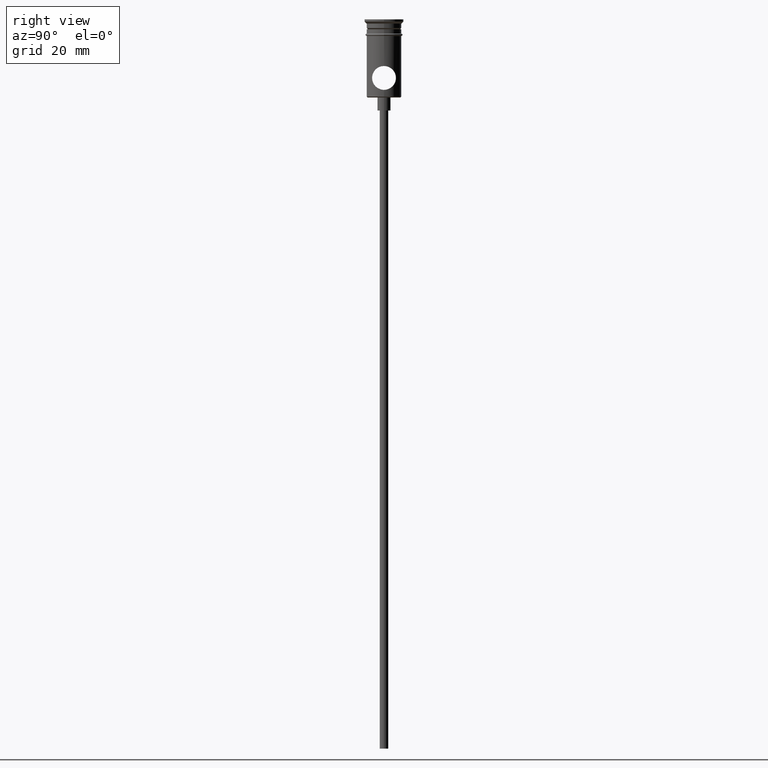
[diagram: clean part render]
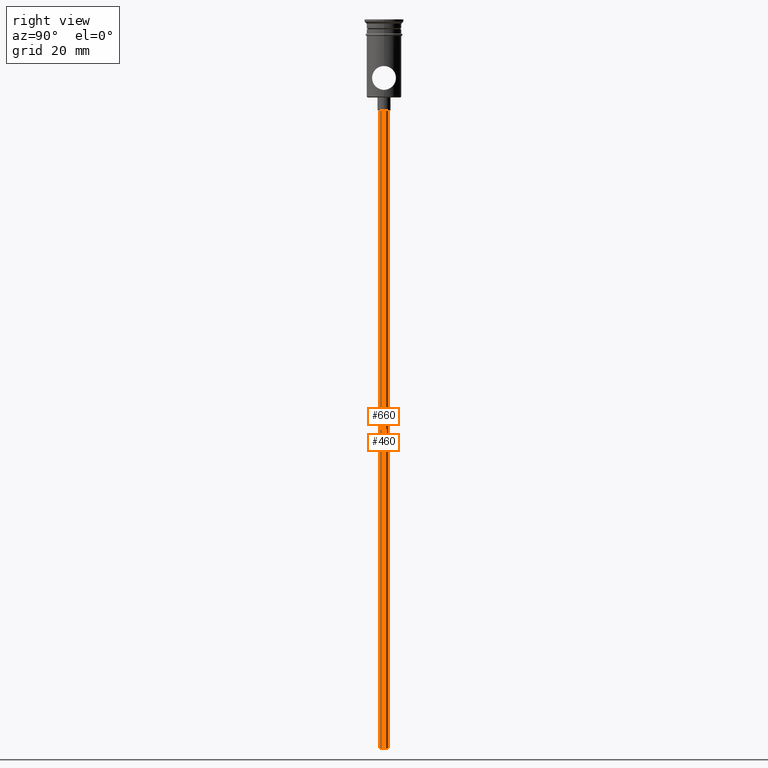
[diagram: same view with one multi-face feature highlighted, each face labeled with its STEP entity id]
A machine part, right view. The highlighted faces form ONE feature: a constant-radius fillet chain: 2 tangent blend faces with common blend radius 1 mm. The faces share edges in the B-rep.
Their STEP definitions:
[1] entity #460 (Cylinder):
#9 = CARTESIAN_POINT ( 'NONE',  ( 0.9999999999999997780, 0.000000000000000000, -20.99999999999999645 ) ) ;
#43 = AXIS2_PLACEMENT_3D ( 'NONE', #904, #805, #1233 ) ;
#65 = DIRECTION ( 'NONE',  ( -0.000000000000000000, -0.000000000000000000, 1.000000000000000000 ) ) ;
#76 = ORIENTED_EDGE ( 'NONE', *, *, #671, .T. ) ;
#85 = CARTESIAN_POINT ( 'NONE',  ( 0.9999999999999997780, 0.000000000000000000, -167.9999999999999716 ) ) ;
#106 = DIRECTION ( 'NONE',  ( -0.000000000000000000, -0.000000000000000000, 1.000000000000000000 ) ) ;
#131 = AXIS2_PLACEMENT_3D ( 'NONE', #150, #1329, #1110 ) ;
#150 = CARTESIAN_POINT ( 'NONE',  ( 0.000000000000000000, 0.000000000000000000, -20.99999999999999645 ) ) ;
#157 = CIRCLE ( 'NONE', #131, 0.9999999999999997780 ) ;
#183 = VECTOR ( 'NONE', #669, 1000.000000000000000 ) ;
#202 = CARTESIAN_POINT ( 'NONE',  ( 0.9999999999999997780, 0.000000000000000000, -167.9999999999999716 ) ) ;
#288 = DIRECTION ( 'NONE',  ( 1.000000000000000000, 0.000000000000000000, 0.000000000000000000 ) ) ;
#323 = AXIS2_PLACEMENT_3D ( 'NONE', #630, #65, #288 ) ;
#447 = CARTESIAN_POINT ( 'NONE',  ( -0.9999999999999997780, 1.224646799147352961E-16, -167.9999999999999716 ) ) ;
#460 = ADVANCED_FACE ( 'NONE', ( #606 ), #1040, .T. ) ;
#498 = ORIENTED_EDGE ( 'NONE', *, *, #616, .T. ) ;
#524 = VERTEX_POINT ( 'NONE', #85 ) ;
#556 = EDGE_CURVE ( 'NONE', #524, #732, #1083, .T. ) ;
#606 = FACE_OUTER_BOUND ( 'NONE', #1119, .T. ) ;
#616 = EDGE_CURVE ( 'NONE', #923, #1224, #772, .T. ) ;
#630 = CARTESIAN_POINT ( 'NONE',  ( 0.000000000000000000, 0.000000000000000000, -167.9999999999999716 ) ) ;
#669 = DIRECTION ( 'NONE',  ( -0.000000000000000000, -0.000000000000000000, 1.000000000000000000 ) ) ;
#671 = EDGE_CURVE ( 'NONE', #1224, #732, #157, .T. ) ;
#732 = VERTEX_POINT ( 'NONE', #9 ) ;
#760 = EDGE_CURVE ( 'NONE', #923, #524, #798, .T. ) ;
#772 = LINE ( 'NONE', #447, #183 ) ;
#798 = CIRCLE ( 'NONE', #43, 0.9999999999999997780 ) ;
#805 = DIRECTION ( 'NONE',  ( 0.000000000000000000, 0.000000000000000000, -1.000000000000000000 ) ) ;
#845 = CARTESIAN_POINT ( 'NONE',  ( -0.9999999999999997780, 1.224646799147352961E-16, -167.9999999999999716 ) ) ;
#904 = CARTESIAN_POINT ( 'NONE',  ( 0.000000000000000000, 0.000000000000000000, -167.9999999999999716 ) ) ;
#923 = VERTEX_POINT ( 'NONE', #845 ) ;
#959 = CARTESIAN_POINT ( 'NONE',  ( -0.9999999999999997780, 1.224646799147352961E-16, -20.99999999999999645 ) ) ;
#1040 = CYLINDRICAL_SURFACE ( 'NONE', #323, 0.9999999999999997780 ) ;
#1068 = VECTOR ( 'NONE', #106, 1000.000000000000000 ) ;
#1083 = LINE ( 'NONE', #202, #1068 ) ;
#1103 = ORIENTED_EDGE ( 'NONE', *, *, #760, .F. ) ;
#1110 = DIRECTION ( 'NONE',  ( -1.000000000000000000, 0.000000000000000000, 0.000000000000000000 ) ) ;
#1119 = EDGE_LOOP ( 'NONE', ( #1103, #498, #76, #1263 ) ) ;
#1224 = VERTEX_POINT ( 'NONE', #959 ) ;
#1233 = DIRECTION ( 'NONE',  ( -1.000000000000000000, 0.000000000000000000, 0.000000000000000000 ) ) ;
#1263 = ORIENTED_EDGE ( 'NONE', *, *, #556, .F. ) ;
#1329 = DIRECTION ( 'NONE',  ( 0.000000000000000000, 0.000000000000000000, -1.000000000000000000 ) ) ;
[2] entity #660 (Cylinder):
#9 = CARTESIAN_POINT ( 'NONE',  ( 0.9999999999999997780, 0.000000000000000000, -20.99999999999999645 ) ) ;
#10 = ORIENTED_EDGE ( 'NONE', *, *, #1153, .F. ) ;
#27 = FACE_OUTER_BOUND ( 'NONE', #1051, .T. ) ;
#46 = CIRCLE ( 'NONE', #843, 0.9999999999999997780 ) ;
#85 = CARTESIAN_POINT ( 'NONE',  ( 0.9999999999999997780, 0.000000000000000000, -167.9999999999999716 ) ) ;
#106 = DIRECTION ( 'NONE',  ( -0.000000000000000000, -0.000000000000000000, 1.000000000000000000 ) ) ;
#126 = CARTESIAN_POINT ( 'NONE',  ( 0.000000000000000000, 0.000000000000000000, -167.9999999999999716 ) ) ;
#167 = ORIENTED_EDGE ( 'NONE', *, *, #743, .T. ) ;
#183 = VECTOR ( 'NONE', #669, 1000.000000000000000 ) ;
#190 = ORIENTED_EDGE ( 'NONE', *, *, #616, .F. ) ;
#202 = CARTESIAN_POINT ( 'NONE',  ( 0.9999999999999997780, 0.000000000000000000, -167.9999999999999716 ) ) ;
#219 = CARTESIAN_POINT ( 'NONE',  ( 0.000000000000000000, 0.000000000000000000, -167.9999999999999716 ) ) ;
#246 = AXIS2_PLACEMENT_3D ( 'NONE', #126, #1418, #1209 ) ;
#346 = DIRECTION ( 'NONE',  ( -1.000000000000000000, 0.000000000000000000, 0.000000000000000000 ) ) ;
#363 = CARTESIAN_POINT ( 'NONE',  ( 0.000000000000000000, 0.000000000000000000, -20.99999999999999645 ) ) ;
#447 = CARTESIAN_POINT ( 'NONE',  ( -0.9999999999999997780, 1.224646799147352961E-16, -167.9999999999999716 ) ) ;
#481 = AXIS2_PLACEMENT_3D ( 'NONE', #363, #794, #346 ) ;
#523 = CIRCLE ( 'NONE', #481, 0.9999999999999997780 ) ;
#524 = VERTEX_POINT ( 'NONE', #85 ) ;
#556 = EDGE_CURVE ( 'NONE', #524, #732, #1083, .T. ) ;
#616 = EDGE_CURVE ( 'NONE', #923, #1224, #772, .T. ) ;
#660 = ADVANCED_FACE ( 'NONE', ( #27 ), #875, .T. ) ;
#669 = DIRECTION ( 'NONE',  ( -0.000000000000000000, -0.000000000000000000, 1.000000000000000000 ) ) ;
#732 = VERTEX_POINT ( 'NONE', #9 ) ;
#739 = ORIENTED_EDGE ( 'NONE', *, *, #556, .T. ) ;
#743 = EDGE_CURVE ( 'NONE', #732, #1224, #523, .T. ) ;
#772 = LINE ( 'NONE', #447, #183 ) ;
#794 = DIRECTION ( 'NONE',  ( 0.000000000000000000, 0.000000000000000000, -1.000000000000000000 ) ) ;
#821 = DIRECTION ( 'NONE',  ( -1.000000000000000000, 0.000000000000000000, 0.000000000000000000 ) ) ;
#843 = AXIS2_PLACEMENT_3D ( 'NONE', #219, #1087, #821 ) ;
#845 = CARTESIAN_POINT ( 'NONE',  ( -0.9999999999999997780, 1.224646799147352961E-16, -167.9999999999999716 ) ) ;
#875 = CYLINDRICAL_SURFACE ( 'NONE', #246, 0.9999999999999997780 ) ;
#923 = VERTEX_POINT ( 'NONE', #845 ) ;
#959 = CARTESIAN_POINT ( 'NONE',  ( -0.9999999999999997780, 1.224646799147352961E-16, -20.99999999999999645 ) ) ;
#1051 = EDGE_LOOP ( 'NONE', ( #190, #10, #739, #167 ) ) ;
#1068 = VECTOR ( 'NONE', #106, 1000.000000000000000 ) ;
#1083 = LINE ( 'NONE', #202, #1068 ) ;
#1087 = DIRECTION ( 'NONE',  ( 0.000000000000000000, 0.000000000000000000, -1.000000000000000000 ) ) ;
#1153 = EDGE_CURVE ( 'NONE', #524, #923, #46, .T. ) ;
#1209 = DIRECTION ( 'NONE',  ( 1.000000000000000000, 0.000000000000000000, 0.000000000000000000 ) ) ;
#1224 = VERTEX_POINT ( 'NONE', #959 ) ;
#1418 = DIRECTION ( 'NONE',  ( -0.000000000000000000, -0.000000000000000000, 1.000000000000000000 ) ) ;